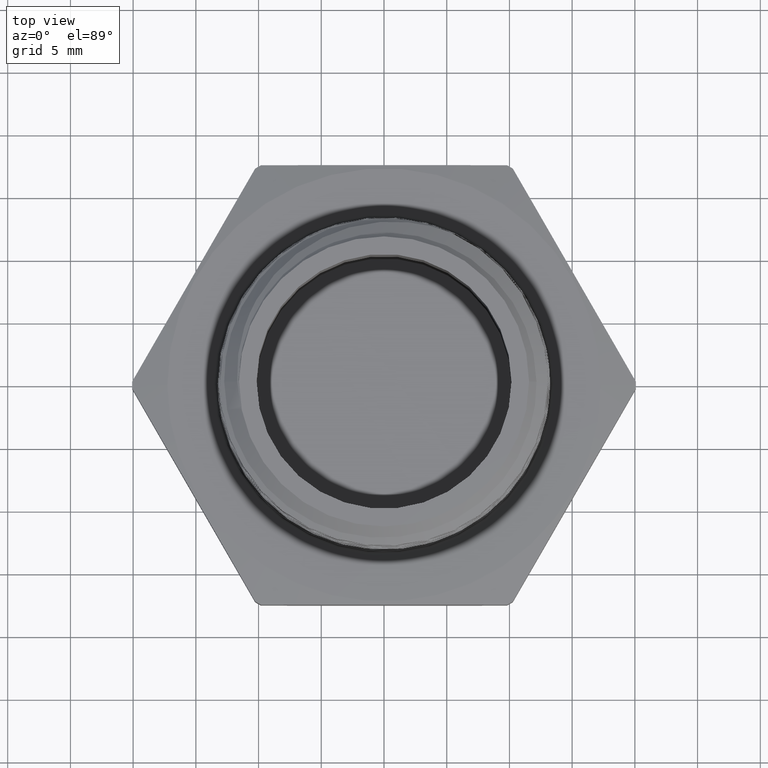
[diagram: clean part render]
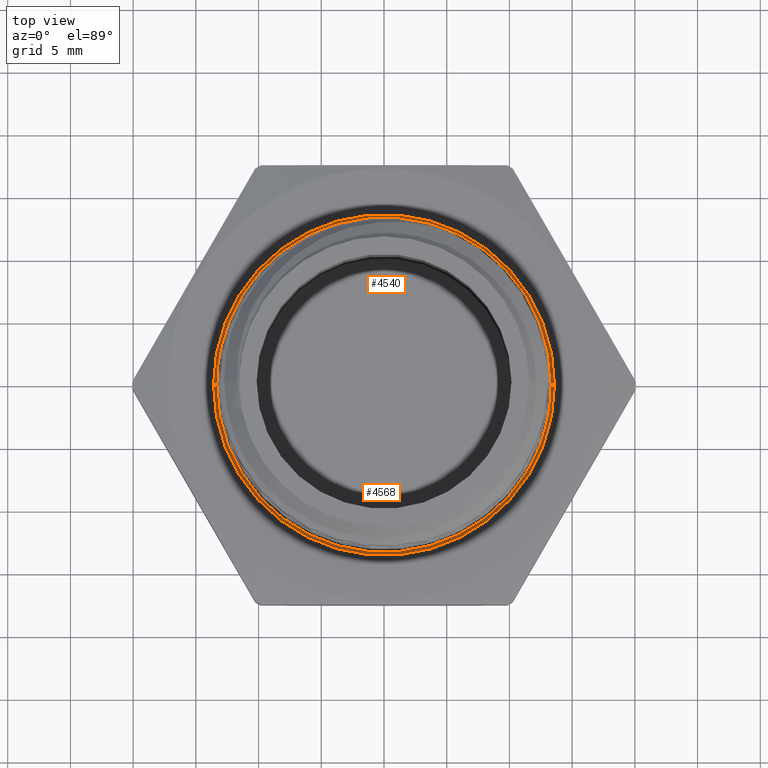
[diagram: same view with one multi-face feature highlighted, each face labeled with its STEP entity id]
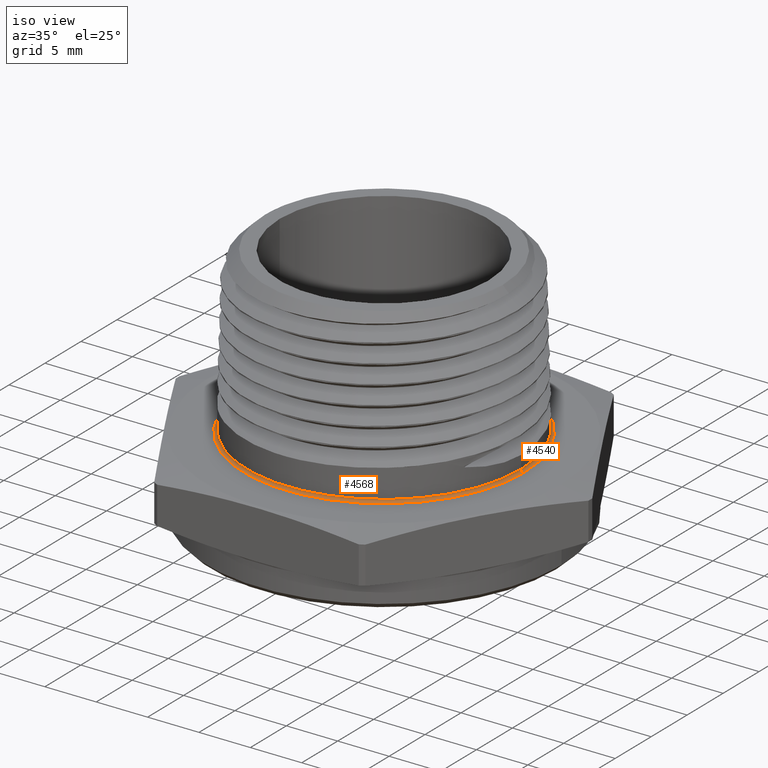
[diagram: same view with one multi-face feature highlighted, each face labeled with its STEP entity id]
A machine part, top view. The highlighted faces form ONE feature: a constant-radius fillet chain: 2 tangent blend faces with common blend radius 0.254 mm. The faces share edges in the B-rep.
A second angle (iso view) of the same feature is appended — it is thin or edge-on in the first view.
Their STEP definitions:
[1] entity #4540 (Torus):
#215 = DIRECTION ( 'NONE',  ( 1.224646799147353200E-016, 1.000000000000000000, 0.0000000000000000000 ) ) ;
#216 = DIRECTION ( 'NONE',  ( -1.000000000000000000, 1.224646799147346800E-016, 0.0000000000000000000 ) ) ;
#217 = CARTESIAN_POINT ( 'NONE',  ( 0.5350000000000000300, 0.0000000000000000000, 0.2000000000000000400 ) ) ;
#218 = DIRECTION ( 'NONE',  ( 0.0000000000000000000, -1.000000000000000000, 0.0000000000000000000 ) ) ;
#219 = DIRECTION ( 'NONE',  ( 0.0000000000000000000, 0.0000000000000000000, -1.000000000000000000 ) ) ;
#1131 = DIRECTION ( 'NONE',  ( -0.0000000000000000000, 0.0000000000000000000, 1.000000000000000000 ) ) ;
#1132 = CARTESIAN_POINT ( 'NONE',  ( 0.0000000000000000000, 0.0000000000000000000, 0.2000000000000000400 ) ) ;
#1134 = DIRECTION ( 'NONE',  ( 1.000000000000000000, 0.0000000000000000000, 0.0000000000000000000 ) ) ;
#1351 = CARTESIAN_POINT ( 'NONE',  ( 0.0000000000000000000, 0.0000000000000000000, 0.2000000000000000400 ) ) ;
#1352 = DIRECTION ( 'NONE',  ( -0.0000000000000000000, 0.0000000000000000000, 1.000000000000000000 ) ) ;
#1353 = DIRECTION ( 'NONE',  ( 1.000000000000000000, 0.0000000000000000000, 0.0000000000000000000 ) ) ;
#1756 = CARTESIAN_POINT ( 'NONE',  ( -0.5350000000000000300, 6.551860375438339900E-017, 0.2000000000000000400 ) ) ;
#2821 = CARTESIAN_POINT ( 'NONE',  ( -0.5250000000000000200, 0.0000000000000000000, 0.2000000000000000400 ) ) ;
#2824 = CARTESIAN_POINT ( 'NONE',  ( 0.5250000000000000200, 6.429395695523603700E-017, 0.2000000000000000400 ) ) ;
#2826 = CARTESIAN_POINT ( 'NONE',  ( 0.5350000000000000300, 0.0000000000000000000, 0.1900000000000000300 ) ) ;
#2827 = CARTESIAN_POINT ( 'NONE',  ( -0.5350000000000000300, 6.551860375438339900E-017, 0.1900000000000000300 ) ) ;
#3093 = CIRCLE ( 'NONE', #3723, 0.01000000000000003000 ) ;
#3095 = CIRCLE ( 'NONE', #3724, 0.009999999999999995000 ) ;
#3227 = CARTESIAN_POINT ( 'NONE',  ( 0.0000000000000000000, 0.0000000000000000000, 0.1899999999999999700 ) ) ;
#3228 = DIRECTION ( 'NONE',  ( 0.0000000000000000000, -0.0000000000000000000, -1.000000000000000000 ) ) ;
#3229 = DIRECTION ( 'NONE',  ( 1.000000000000000000, 0.0000000000000000000, 0.0000000000000000000 ) ) ;
#3518 = EDGE_CURVE ( 'NONE', #4274, #4271, #4050, .T. ) ;
#3583 = EDGE_CURVE ( 'NONE', #4277, #4276, #4096, .T. ) ;
#3629 = AXIS2_PLACEMENT_3D ( 'NONE', #1351, #1352, #1353 ) ;
#3638 = AXIS2_PLACEMENT_3D ( 'NONE', #3227, #3228, #3229 ) ;
#3694 = AXIS2_PLACEMENT_3D ( 'NONE', #1132, #1131, #1134 ) ;
#3723 = AXIS2_PLACEMENT_3D ( 'NONE', #1756, #215, #216 ) ;
#3724 = AXIS2_PLACEMENT_3D ( 'NONE', #217, #218, #219 ) ;
#4012 = EDGE_LOOP ( 'NONE', ( #4421, #4422, #4423, #4424 ) ) ;
#4050 = CIRCLE ( 'NONE', #3629, 0.5250000000000000200 ) ;
#4096 = CIRCLE ( 'NONE', #3638, 0.5350000000000000300 ) ;
#4208 = FACE_OUTER_BOUND ( 'NONE', #4012, .T. ) ;
#4213 = TOROIDAL_SURFACE ( 'NONE', #3694, 0.5350000000000000300, 0.01000000000000000000 ) ;
#4271 = VERTEX_POINT ( 'NONE', #2821 ) ;
#4274 = VERTEX_POINT ( 'NONE', #2824 ) ;
#4276 = VERTEX_POINT ( 'NONE', #2826 ) ;
#4277 = VERTEX_POINT ( 'NONE', #2827 ) ;
#4421 = ORIENTED_EDGE ( 'NONE', *, *, #4758, .F. ) ;
#4422 = ORIENTED_EDGE ( 'NONE', *, *, #3518, .F. ) ;
#4423 = ORIENTED_EDGE ( 'NONE', *, *, #4759, .T. ) ;
#4424 = ORIENTED_EDGE ( 'NONE', *, *, #3583, .F. ) ;
#4540 = ADVANCED_FACE ( 'NONE', ( #4208 ), #4213, .F. ) ;
#4758 = EDGE_CURVE ( 'NONE', #4271, #4277, #3093, .T. ) ;
#4759 = EDGE_CURVE ( 'NONE', #4274, #4276, #3095, .T. ) ;
[2] entity #4568 (Torus):
#215 = DIRECTION ( 'NONE',  ( 1.224646799147353200E-016, 1.000000000000000000, 0.0000000000000000000 ) ) ;
#216 = DIRECTION ( 'NONE',  ( -1.000000000000000000, 1.224646799147346800E-016, 0.0000000000000000000 ) ) ;
#217 = CARTESIAN_POINT ( 'NONE',  ( 0.5350000000000000300, 0.0000000000000000000, 0.2000000000000000400 ) ) ;
#218 = DIRECTION ( 'NONE',  ( 0.0000000000000000000, -1.000000000000000000, 0.0000000000000000000 ) ) ;
#219 = DIRECTION ( 'NONE',  ( 0.0000000000000000000, 0.0000000000000000000, -1.000000000000000000 ) ) ;
#232 = CARTESIAN_POINT ( 'NONE',  ( 0.0000000000000000000, 0.0000000000000000000, 0.2000000000000000400 ) ) ;
#233 = DIRECTION ( 'NONE',  ( -0.0000000000000000000, 0.0000000000000000000, 1.000000000000000000 ) ) ;
#234 = DIRECTION ( 'NONE',  ( 1.000000000000000000, 0.0000000000000000000, 0.0000000000000000000 ) ) ;
#237 = CARTESIAN_POINT ( 'NONE',  ( 0.0000000000000000000, 0.0000000000000000000, 0.1899999999999999700 ) ) ;
#238 = DIRECTION ( 'NONE',  ( 0.0000000000000000000, -0.0000000000000000000, -1.000000000000000000 ) ) ;
#239 = DIRECTION ( 'NONE',  ( 1.000000000000000000, 0.0000000000000000000, 0.0000000000000000000 ) ) ;
#1756 = CARTESIAN_POINT ( 'NONE',  ( -0.5350000000000000300, 6.551860375438339900E-017, 0.2000000000000000400 ) ) ;
#2821 = CARTESIAN_POINT ( 'NONE',  ( -0.5250000000000000200, 0.0000000000000000000, 0.2000000000000000400 ) ) ;
#2824 = CARTESIAN_POINT ( 'NONE',  ( 0.5250000000000000200, 6.429395695523603700E-017, 0.2000000000000000400 ) ) ;
#2826 = CARTESIAN_POINT ( 'NONE',  ( 0.5350000000000000300, 0.0000000000000000000, 0.1900000000000000300 ) ) ;
#2827 = CARTESIAN_POINT ( 'NONE',  ( -0.5350000000000000300, 6.551860375438339900E-017, 0.1900000000000000300 ) ) ;
#3047 = FACE_OUTER_BOUND ( 'NONE', #4238, .T. ) ;
#3089 = TOROIDAL_SURFACE ( 'NONE', #3722, 0.5350000000000000300, 0.01000000000000000000 ) ;
#3093 = CIRCLE ( 'NONE', #3723, 0.01000000000000003000 ) ;
#3095 = CIRCLE ( 'NONE', #3724, 0.009999999999999995000 ) ;
#3103 = CIRCLE ( 'NONE', #3728, 0.5250000000000000200 ) ;
#3105 = CIRCLE ( 'NONE', #3729, 0.5350000000000000300 ) ;
#3722 = AXIS2_PLACEMENT_3D ( 'NONE', #5354, #5353, #5355 ) ;
#3723 = AXIS2_PLACEMENT_3D ( 'NONE', #1756, #215, #216 ) ;
#3724 = AXIS2_PLACEMENT_3D ( 'NONE', #217, #218, #219 ) ;
#3728 = AXIS2_PLACEMENT_3D ( 'NONE', #232, #233, #234 ) ;
#3729 = AXIS2_PLACEMENT_3D ( 'NONE', #237, #238, #239 ) ;
#4238 = EDGE_LOOP ( 'NONE', ( #5020, #5015, #5007, #4995 ) ) ;
#4271 = VERTEX_POINT ( 'NONE', #2821 ) ;
#4274 = VERTEX_POINT ( 'NONE', #2824 ) ;
#4276 = VERTEX_POINT ( 'NONE', #2826 ) ;
#4277 = VERTEX_POINT ( 'NONE', #2827 ) ;
#4568 = ADVANCED_FACE ( 'NONE', ( #3047 ), #3089, .F. ) ;
#4758 = EDGE_CURVE ( 'NONE', #4271, #4277, #3093, .T. ) ;
#4759 = EDGE_CURVE ( 'NONE', #4274, #4276, #3095, .T. ) ;
#4765 = EDGE_CURVE ( 'NONE', #4271, #4274, #3103, .T. ) ;
#4766 = EDGE_CURVE ( 'NONE', #4276, #4277, #3105, .T. ) ;
#4995 = ORIENTED_EDGE ( 'NONE', *, *, #4759, .F. ) ;
#5007 = ORIENTED_EDGE ( 'NONE', *, *, #4766, .F. ) ;
#5015 = ORIENTED_EDGE ( 'NONE', *, *, #4758, .T. ) ;
#5020 = ORIENTED_EDGE ( 'NONE', *, *, #4765, .F. ) ;
#5353 = DIRECTION ( 'NONE',  ( -0.0000000000000000000, 0.0000000000000000000, 1.000000000000000000 ) ) ;
#5354 = CARTESIAN_POINT ( 'NONE',  ( 0.0000000000000000000, 0.0000000000000000000, 0.2000000000000000400 ) ) ;
#5355 = DIRECTION ( 'NONE',  ( 1.000000000000000000, 0.0000000000000000000, 0.0000000000000000000 ) ) ;